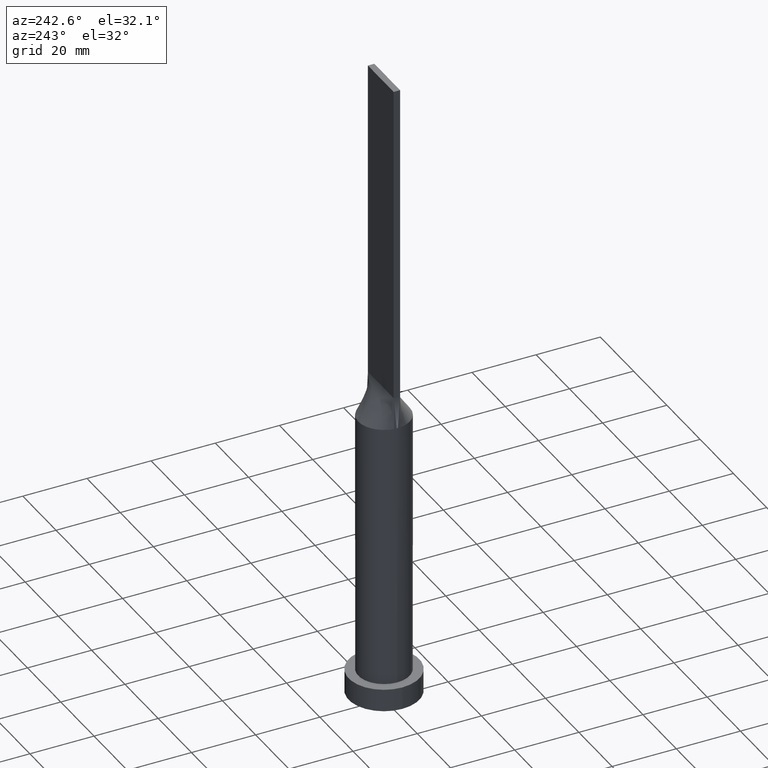
[diagram: clean part render]
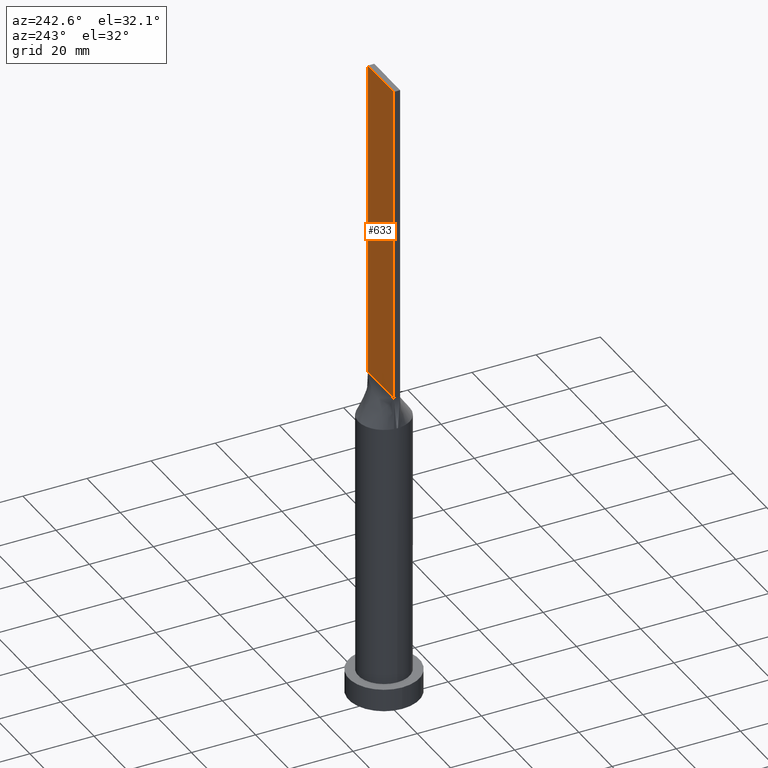
[diagram: same view with one face highlighted and labeled with its STEP entity id]
A machine part, auxiliary view. The second image highlights one B-rep face of the part: STEP entity #633.
In plain terms, the highlighted planar face has unit normal (0, -1, 0).
Its self-contained STEP definition (entity closure, byte-faithful):
#1 = VERTEX_POINT ( 'NONE', #596 ) ;
#9 = LINE ( 'NONE', #112, #133 ) ;
#15 = LINE ( 'NONE', #32, #271 ) ;
#16 = EDGE_CURVE ( 'NONE', #24, #1, #154, .T. ) ;
#20 = DIRECTION ( 'NONE',  ( -0.000000000000000000, -0.000000000000000000, -1.000000000000000000 ) ) ;
#23 = CARTESIAN_POINT ( 'NONE',  ( -7.750000000000000000, 1.000000000000000000, 200.0000000000000000 ) ) ;
#24 = VERTEX_POINT ( 'NONE', #23 ) ;
#32 = CARTESIAN_POINT ( 'NONE',  ( 7.750000000000000000, 1.000000000000000000, 200.0000000000000000 ) ) ;
#44 = DIRECTION ( 'NONE',  ( -1.000000000000000000, -0.000000000000000000, -0.000000000000000000 ) ) ;
#52 = EDGE_LOOP ( 'NONE', ( #333, #234, #279, #303 ) ) ;
#71 = VERTEX_POINT ( 'NONE', #380 ) ;
#112 = CARTESIAN_POINT ( 'NONE',  ( 7.750000000000000000, 1.000000000000000000, 200.0000000000000000 ) ) ;
#132 = CARTESIAN_POINT ( 'NONE',  ( 7.750000000000000000, 1.000000000000000000, 200.0000000000000000 ) ) ;
#133 = VECTOR ( 'NONE', #20, 1000.000000000000000 ) ;
#154 = LINE ( 'NONE', #517, #398 ) ;
#160 = EDGE_CURVE ( 'NONE', #364, #24, #15, .T. ) ;
#214 = CARTESIAN_POINT ( 'NONE',  ( -7.750000000000000000, 1.000000000000000000, 100.0000000000000000 ) ) ;
#234 = ORIENTED_EDGE ( 'NONE', *, *, #16, .F. ) ;
#247 = EDGE_CURVE ( 'NONE', #71, #1, #557, .T. ) ;
#271 = VECTOR ( 'NONE', #506, 1000.000000000000000 ) ;
#279 = ORIENTED_EDGE ( 'NONE', *, *, #160, .F. ) ;
#303 = ORIENTED_EDGE ( 'NONE', *, *, #431, .T. ) ;
#333 = ORIENTED_EDGE ( 'NONE', *, *, #247, .T. ) ;
#337 = DIRECTION ( 'NONE',  ( -0.000000000000000000, -0.000000000000000000, -1.000000000000000000 ) ) ;
#343 = DIRECTION ( 'NONE',  ( 0.000000000000000000, -1.000000000000000000, 0.000000000000000000 ) ) ;
#352 = AXIS2_PLACEMENT_3D ( 'NONE', #132, #343, #530 ) ;
#364 = VERTEX_POINT ( 'NONE', #395 ) ;
#380 = CARTESIAN_POINT ( 'NONE',  ( 7.750000000000000000, 1.000000000000000000, 100.0000000000000000 ) ) ;
#395 = CARTESIAN_POINT ( 'NONE',  ( 7.750000000000000000, 1.000000000000000000, 200.0000000000000000 ) ) ;
#398 = VECTOR ( 'NONE', #337, 1000.000000000000000 ) ;
#431 = EDGE_CURVE ( 'NONE', #364, #71, #9, .T. ) ;
#477 = FACE_OUTER_BOUND ( 'NONE', #52, .T. ) ;
#506 = DIRECTION ( 'NONE',  ( -1.000000000000000000, 0.000000000000000000, 0.000000000000000000 ) ) ;
#512 = VECTOR ( 'NONE', #44, 1000.000000000000000 ) ;
#517 = CARTESIAN_POINT ( 'NONE',  ( -7.750000000000000000, 1.000000000000000000, 200.0000000000000000 ) ) ;
#530 = DIRECTION ( 'NONE',  ( 0.000000000000000000, -0.000000000000000000, -1.000000000000000000 ) ) ;
#557 = LINE ( 'NONE', #214, #512 ) ;
#576 = PLANE ( 'NONE',  #352 ) ;
#596 = CARTESIAN_POINT ( 'NONE',  ( -7.750000000000000000, 1.000000000000000000, 100.0000000000000000 ) ) ;
#633 = ADVANCED_FACE ( 'NONE', ( #477 ), #576, .F. ) ;